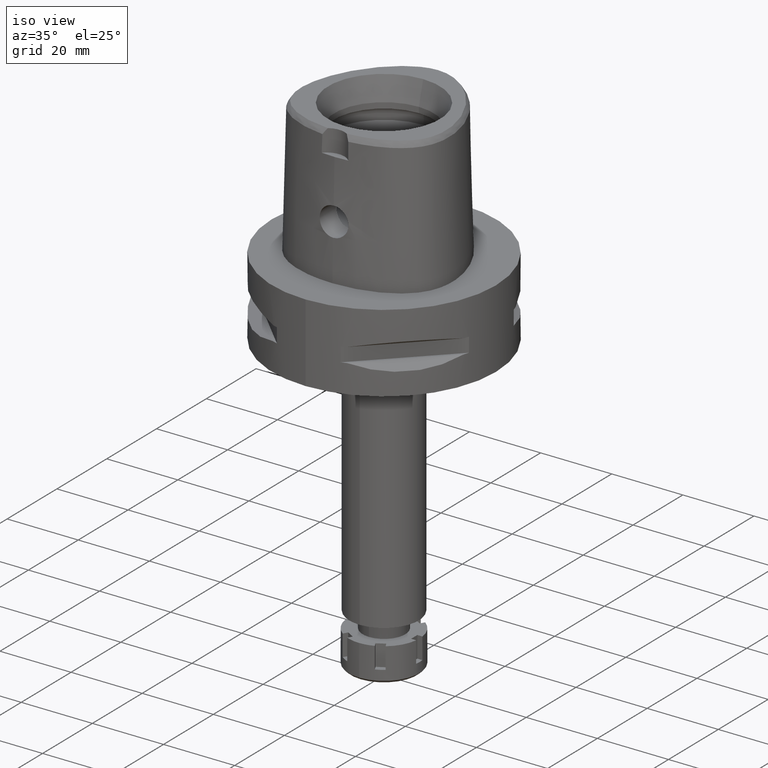
[diagram: clean part render]
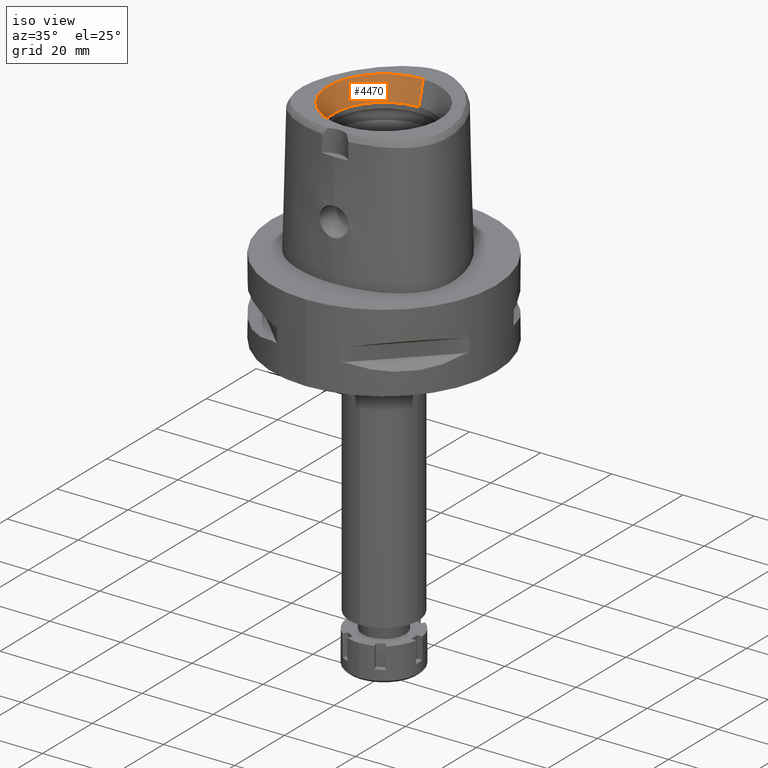
[diagram: same view with one face highlighted and labeled with its STEP entity id]
A machine part, iso view. The second image highlights one B-rep face of the part: STEP entity #4470.
In plain terms, the highlighted conical surface has half-angle 15 deg.
Its self-contained STEP definition (entity closure, byte-faithful):
#134 = EDGE_CURVE ( 'NONE', #233, #4444, #4671, .T. ) ;
#168 = CONICAL_SURFACE ( 'NONE', #894, 14.85743741577999977, 0.2617993877991000029 ) ;
#225 = DIRECTION ( 'NONE',  ( 0.0000000000000000000, 0.0000000000000000000, 1.000000000000000000 ) ) ;
#233 = VERTEX_POINT ( 'NONE', #4762 ) ;
#298 = CARTESIAN_POINT ( 'NONE',  ( 0.0000000000000000000, 14.00000000000000000, 31.60000000000000142 ) ) ;
#300 = VERTEX_POINT ( 'NONE', #1292 ) ;
#371 = DIRECTION ( 'NONE',  ( 0.0000000000000000000, 1.000000000000000000, 0.0000000000000000000 ) ) ;
#698 = ORIENTED_EDGE ( 'NONE', *, *, #5469, .F. ) ;
#894 = AXIS2_PLACEMENT_3D ( 'NONE', #2960, #2565, #3016 ) ;
#1074 = DIRECTION ( 'NONE',  ( 0.0000000000000000000, 1.000000000000000000, 0.0000000000000000000 ) ) ;
#1292 = CARTESIAN_POINT ( 'NONE',  ( 0.0000000000000000000, -14.00000000000000000, 31.60000000000000142 ) ) ;
#1875 = AXIS2_PLACEMENT_3D ( 'NONE', #4646, #2509, #371 ) ;
#1913 = EDGE_CURVE ( 'NONE', #300, #4444, #3620, .T. ) ;
#2058 = ORIENTED_EDGE ( 'NONE', *, *, #134, .T. ) ;
#2162 = EDGE_CURVE ( 'NONE', #3417, #233, #2925, .T. ) ;
#2223 = EDGE_LOOP ( 'NONE', ( #2924, #698, #5382, #2058 ) ) ;
#2230 = CARTESIAN_POINT ( 'NONE',  ( 0.0000000000000000000, 14.00000000000000000, 31.60000000000000142 ) ) ;
#2336 = CIRCLE ( 'NONE', #1875, 14.00000000000000000 ) ;
#2384 = DIRECTION ( 'NONE',  ( 0.0000000000000000000, -0.2588190451025869088, 0.9659258262890505486 ) ) ;
#2509 = DIRECTION ( 'NONE',  ( 0.0000000000000000000, 0.0000000000000000000, 1.000000000000000000 ) ) ;
#2565 = DIRECTION ( 'NONE',  ( 0.0000000000000000000, 0.0000000000000000000, 1.000000000000000000 ) ) ;
#2756 = CARTESIAN_POINT ( 'NONE',  ( 0.0000000000000000000, -14.00000000000000000, 31.60000000000000142 ) ) ;
#2924 = ORIENTED_EDGE ( 'NONE', *, *, #1913, .F. ) ;
#2925 = LINE ( 'NONE', #298, #4553 ) ;
#2960 = CARTESIAN_POINT ( 'NONE',  ( 0.0000000000000000000, 0.0000000000000000000, 34.79999999999999716 ) ) ;
#3016 = DIRECTION ( 'NONE',  ( 0.0000000000000000000, 1.000000000000000000, 0.0000000000000000000 ) ) ;
#3043 = FACE_OUTER_BOUND ( 'NONE', #2223, .T. ) ;
#3072 = CARTESIAN_POINT ( 'NONE',  ( 0.0000000000000000000, -15.71487483155999776, 38.00000000000000000 ) ) ;
#3372 = DIRECTION ( 'NONE',  ( 0.0000000000000000000, 0.2588190451025869088, 0.9659258262890505486 ) ) ;
#3417 = VERTEX_POINT ( 'NONE', #2230 ) ;
#3620 = LINE ( 'NONE', #2756, #4010 ) ;
#3765 = AXIS2_PLACEMENT_3D ( 'NONE', #4026, #225, #1074 ) ;
#4010 = VECTOR ( 'NONE', #2384, 1000.000000000000000 ) ;
#4026 = CARTESIAN_POINT ( 'NONE',  ( 0.0000000000000000000, 0.0000000000000000000, 38.00000000000000000 ) ) ;
#4444 = VERTEX_POINT ( 'NONE', #3072 ) ;
#4470 = ADVANCED_FACE ( 'NONE', ( #3043 ), #168, .F. ) ;
#4553 = VECTOR ( 'NONE', #3372, 1000.000000000000000 ) ;
#4646 = CARTESIAN_POINT ( 'NONE',  ( 0.0000000000000000000, 0.0000000000000000000, 31.60000000000000142 ) ) ;
#4671 = CIRCLE ( 'NONE', #3765, 15.71487483155999776 ) ;
#4762 = CARTESIAN_POINT ( 'NONE',  ( 0.0000000000000000000, 15.71487483155999776, 38.00000000000000000 ) ) ;
#5382 = ORIENTED_EDGE ( 'NONE', *, *, #2162, .T. ) ;
#5469 = EDGE_CURVE ( 'NONE', #3417, #300, #2336, .T. ) ;